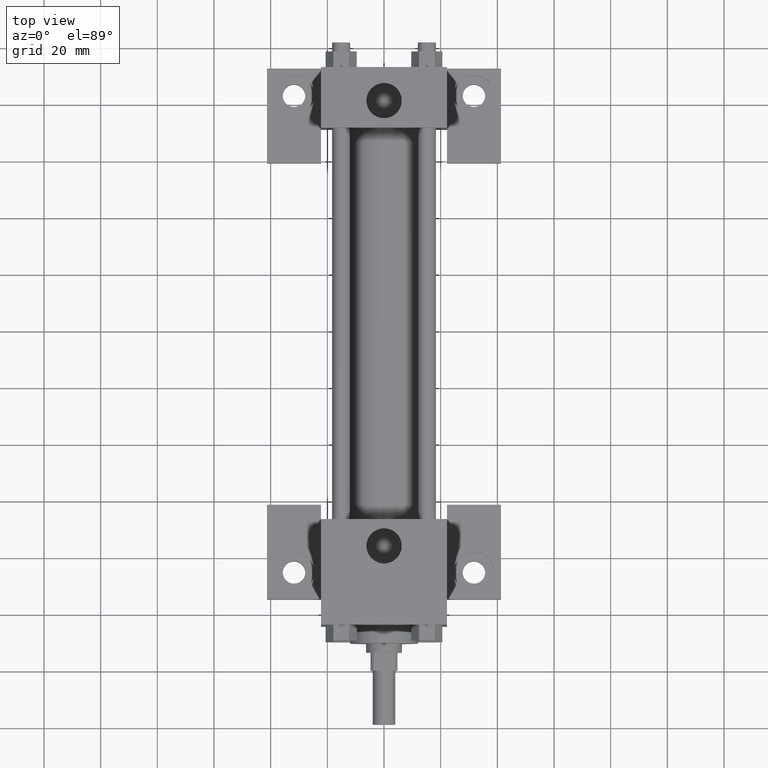
[diagram: clean part render]
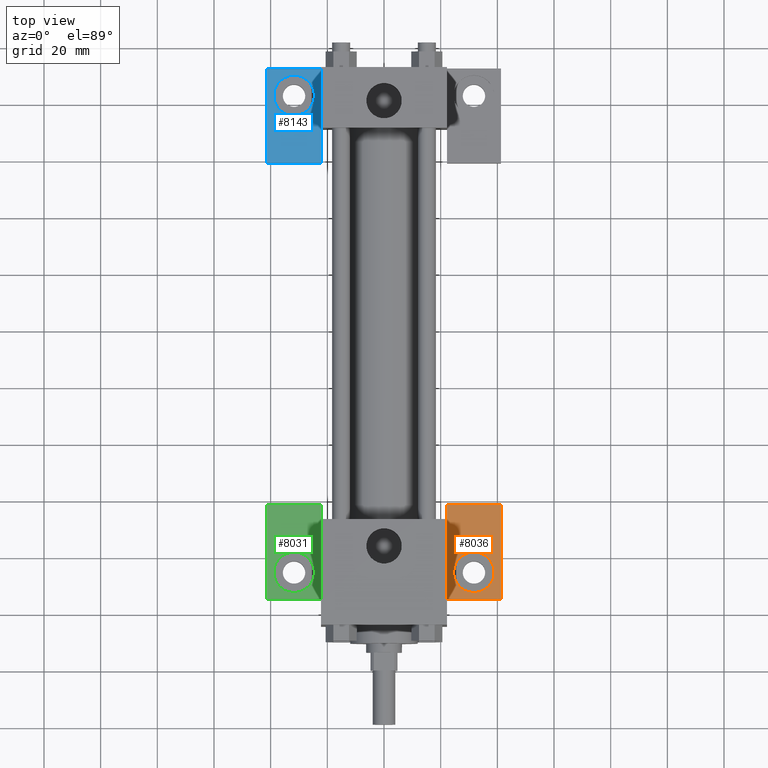
[diagram: same view with three faces highlighted in distinct colors, each labeled with its STEP entity id]
A machine part, top view with three faces highlighted in distinct colors.
Their STEP definitions:

[orange] entity #8036 — the highlighted planar face has unit normal (0, 0, 1).
#1417=EDGE_CURVE('',#1423,#1423,#1418,.T.);
#1418=CIRCLE('',#1419,7.143750000E+000);
#1419=AXIS2_PLACEMENT_3D('',#1420,#1421,#1422);
#1420=CARTESIAN_POINT('',(3.175000000E+001,3.492500000E+001,-9.525000000E+000));
#1421=DIRECTION('',(0.0E+000,0.0E+000,-1.0E+000));
#1422=DIRECTION('',(0.0E+000,-1.0E+000,0.0E+000));
#1423=VERTEX_POINT('',#1424);
#1424=CARTESIAN_POINT('',(3.175000000E+001,2.778125000E+001,-9.525000000E+000));
#1678=FACE_OUTER_BOUND('',#1680,.T.);
#1679=FACE_BOUND('',#1681,.T.);
#1680=EDGE_LOOP('',(#1682));
#1681=EDGE_LOOP('',(#1683,#1684,#1685,#1686,#1687));
#1682=ORIENTED_EDGE('',*,*,#1417,.T.);
#1683=ORIENTED_EDGE('',*,*,#1688,.T.);
#1684=ORIENTED_EDGE('',*,*,#1697,.T.);
#1685=ORIENTED_EDGE('',*,*,#1704,.T.);
#1686=ORIENTED_EDGE('',*,*,#1711,.T.);
#1687=ORIENTED_EDGE('',*,*,#1714,.T.);
#1688=EDGE_CURVE('',#1693,#1694,#1689,.T.);
#1689=LINE('',#1690,#1691);
#1690=CARTESIAN_POINT('',(4.127500000E+001,2.540000000E+001,-9.525000000E+000));
#1691=VECTOR('',#1692,1.0E+000);
#1692=DIRECTION('',(0.0E+000,1.0E+000,0.0E+000));
#1693=VERTEX_POINT('',#1695);
#1694=VERTEX_POINT('',#1696);
#1695=CARTESIAN_POINT('',(4.127500000E+001,2.540000000E+001,-9.525000000E+000));
#1696=CARTESIAN_POINT('',(4.127500000E+001,5.873750000E+001,-9.525000000E+000));
#1697=EDGE_CURVE('',#1694,#1702,#1698,.T.);
#1698=LINE('',#1699,#1700);
#1699=CARTESIAN_POINT('',(4.127500000E+001,5.873750000E+001,-9.525000000E+000));
#1700=VECTOR('',#1701,1.0E+000);
#1701=DIRECTION('',(-1.0E+000,0.0E+000,0.0E+000));
#1702=VERTEX_POINT('',#1703);
#1703=CARTESIAN_POINT('',(2.222500000E+001,5.873750000E+001,-9.525000000E+000));
#1704=EDGE_CURVE('',#1702,#1709,#1705,.T.);
#1705=LINE('',#1706,#1707);
#1706=CARTESIAN_POINT('',(2.222500000E+001,5.873750000E+001,-9.525000000E+000));
#1707=VECTOR('',#1708,1.0E+000);
#1708=DIRECTION('',(0.0E+000,-1.0E+000,0.0E+000));
#1709=VERTEX_POINT('',#1710);
#1710=CARTESIAN_POINT('',(2.222500000E+001,5.318125000E+001,-9.525000000E+000));
#1711=EDGE_CURVE('',#1709,#1712,#1705,.T.);
#1712=VERTEX_POINT('',#1713);
#1713=CARTESIAN_POINT('',(2.222500000E+001,2.540000000E+001,-9.525000000E+000));
#1714=EDGE_CURVE('',#1712,#1693,#1715,.T.);
#1715=LINE('',#1716,#1717);
#1716=CARTESIAN_POINT('',(2.222500000E+001,2.540000000E+001,-9.525000000E+000));
#1717=VECTOR('',#1718,1.0E+000);
#1718=DIRECTION('',(1.0E+000,0.0E+000,0.0E+000));
#1719=PLANE('',#1720);
#1720=AXIS2_PLACEMENT_3D('',#1721,#1722,#1723);
#1721=CARTESIAN_POINT('',(4.127500000E+001,5.873750000E+001,-9.525000000E+000));
#1722=DIRECTION('',(0.0E+000,0.0E+000,1.0E+000));
#1723=DIRECTION('',(1.0E+000,0.0E+000,0.0E+000));
#8036=ADVANCED_FACE('',(#1678,#1679),#1719,.T.);

[blue] entity #8143 — the highlighted planar face has unit normal (0, 0, -1).
#5169=EDGE_CURVE('',#5175,#5175,#5170,.T.);
#5170=CIRCLE('',#5171,7.143750000E+000);
#5171=AXIS2_PLACEMENT_3D('',#5172,#5173,#5174);
#5172=CARTESIAN_POINT('',(-3.175000000E+001,2.032000000E+002,-9.525000000E+000));
#5173=DIRECTION('',(0.0E+000,0.0E+000,-1.0E+000));
#5174=DIRECTION('',(0.0E+000,-1.0E+000,0.0E+000));
#5175=VERTEX_POINT('',#5176);
#5176=CARTESIAN_POINT('',(-3.175000000E+001,1.960562500E+002,-9.525000000E+000));
#5460=FACE_OUTER_BOUND('',#5462,.T.);
#5461=FACE_BOUND('',#5463,.T.);
#5462=EDGE_LOOP('',(#5464));
#5463=EDGE_LOOP('',(#5465,#5466,#5467,#5468,#5469));
#5464=ORIENTED_EDGE('',*,*,#5169,.T.);
#5465=ORIENTED_EDGE('',*,*,#5470,.F.);
#5466=ORIENTED_EDGE('',*,*,#5479,.F.);
#5467=ORIENTED_EDGE('',*,*,#5486,.F.);
#5468=ORIENTED_EDGE('',*,*,#5493,.F.);
#5469=ORIENTED_EDGE('',*,*,#5500,.F.);
#5470=EDGE_CURVE('',#5475,#5476,#5471,.T.);
#5471=LINE('',#5472,#5473);
#5472=CARTESIAN_POINT('',(-2.222500000E+001,2.127250000E+002,-9.525000000E+000));
#5473=VECTOR('',#5474,1.0E+000);
#5474=DIRECTION('',(0.0E+000,-1.0E+000,0.0E+000));
#5475=VERTEX_POINT('',#5477);
#5476=VERTEX_POINT('',#5478);
#5477=CARTESIAN_POINT('',(-2.222500000E+001,2.127250000E+002,-9.525000000E+000));
#5478=CARTESIAN_POINT('',(-2.222500000E+001,1.912937500E+002,-9.525000000E+000));
#5479=EDGE_CURVE('',#5484,#5475,#5480,.T.);
#5480=LINE('',#5481,#5482);
#5481=CARTESIAN_POINT('',(-4.127500000E+001,2.127250000E+002,-9.525000000E+000));
#5482=VECTOR('',#5483,1.0E+000);
#5483=DIRECTION('',(1.0E+000,0.0E+000,0.0E+000));
#5484=VERTEX_POINT('',#5485);
#5485=CARTESIAN_POINT('',(-4.127500000E+001,2.127250000E+002,-9.525000000E+000));
#5486=EDGE_CURVE('',#5491,#5484,#5487,.T.);
#5487=LINE('',#5488,#5489);
#5488=CARTESIAN_POINT('',(-4.127500000E+001,1.793875000E+002,-9.525000000E+000));
#5489=VECTOR('',#5490,1.0E+000);
#5490=DIRECTION('',(0.0E+000,1.0E+000,0.0E+000));
#5491=VERTEX_POINT('',#5492);
#5492=CARTESIAN_POINT('',(-4.127500000E+001,1.793875000E+002,-9.525000000E+000));
#5493=EDGE_CURVE('',#5498,#5491,#5494,.T.);
#5494=LINE('',#5495,#5496);
#5495=CARTESIAN_POINT('',(-2.222500000E+001,1.793875000E+002,-9.525000000E+000));
#5496=VECTOR('',#5497,1.0E+000);
#5497=DIRECTION('',(-1.0E+000,0.0E+000,0.0E+000));
#5498=VERTEX_POINT('',#5499);
#5499=CARTESIAN_POINT('',(-2.222500000E+001,1.793875000E+002,-9.525000000E+000));
#5500=EDGE_CURVE('',#5476,#5498,#5471,.T.);
#5501=PLANE('',#5502);
#5502=AXIS2_PLACEMENT_3D('',#5503,#5504,#5505);
#5503=CARTESIAN_POINT('',(-2.222500000E+001,1.793875000E+002,-9.525000000E+000));
#5504=DIRECTION('',(0.0E+000,0.0E+000,-1.0E+000));
#5505=DIRECTION('',(-1.0E+000,0.0E+000,0.0E+000));
#8143=ADVANCED_FACE('',(#5460,#5461),#5501,.F.);

[green] entity #8031 — the highlighted planar face has unit normal (0, 0, 1).
#1482=EDGE_CURVE('',#1488,#1488,#1483,.T.);
#1483=CIRCLE('',#1484,7.143750000E+000);
#1484=AXIS2_PLACEMENT_3D('',#1485,#1486,#1487);
#1485=CARTESIAN_POINT('',(-3.175000000E+001,3.492500000E+001,-9.525000000E+000));
#1486=DIRECTION('',(0.0E+000,0.0E+000,-1.0E+000));
#1487=DIRECTION('',(0.0E+000,-1.0E+000,0.0E+000));
#1488=VERTEX_POINT('',#1489);
#1489=CARTESIAN_POINT('',(-3.175000000E+001,2.778125000E+001,-9.525000000E+000));
#1533=FACE_OUTER_BOUND('',#1535,.T.);
#1534=FACE_BOUND('',#1536,.T.);
#1535=EDGE_LOOP('',(#1537));
#1536=EDGE_LOOP('',(#1538,#1539,#1540,#1541,#1542));
#1537=ORIENTED_EDGE('',*,*,#1482,.T.);
#1538=ORIENTED_EDGE('',*,*,#1543,.T.);
#1539=ORIENTED_EDGE('',*,*,#1552,.T.);
#1540=ORIENTED_EDGE('',*,*,#1555,.T.);
#1541=ORIENTED_EDGE('',*,*,#1562,.T.);
#1542=ORIENTED_EDGE('',*,*,#1569,.T.);
#1543=EDGE_CURVE('',#1548,#1549,#1544,.T.);
#1544=LINE('',#1545,#1546);
#1545=CARTESIAN_POINT('',(-2.222500000E+001,5.873750000E+001,-9.525000000E+000));
#1546=VECTOR('',#1547,1.0E+000);
#1547=DIRECTION('',(0.0E+000,1.0E+000,0.0E+000));
#1548=VERTEX_POINT('',#1550);
#1549=VERTEX_POINT('',#1551);
#1550=CARTESIAN_POINT('',(-2.222500000E+001,2.540000000E+001,-9.525000000E+000));
#1551=CARTESIAN_POINT('',(-2.222500000E+001,5.318125000E+001,-9.525000000E+000));
#1552=EDGE_CURVE('',#1549,#1553,#1544,.T.);
#1553=VERTEX_POINT('',#1554);
#1554=CARTESIAN_POINT('',(-2.222500000E+001,5.873750000E+001,-9.525000000E+000));
#1555=EDGE_CURVE('',#1553,#1560,#1556,.T.);
#1556=LINE('',#1557,#1558);
#1557=CARTESIAN_POINT('',(-2.222500000E+001,5.873750000E+001,-9.525000000E+000));
#1558=VECTOR('',#1559,1.0E+000);
#1559=DIRECTION('',(-1.0E+000,0.0E+000,0.0E+000));
#1560=VERTEX_POINT('',#1561);
#1561=CARTESIAN_POINT('',(-4.127500000E+001,5.873750000E+001,-9.525000000E+000));
#1562=EDGE_CURVE('',#1560,#1567,#1563,.T.);
#1563=LINE('',#1564,#1565);
#1564=CARTESIAN_POINT('',(-4.127500000E+001,5.873750000E+001,-9.525000000E+000));
#1565=VECTOR('',#1566,1.0E+000);
#1566=DIRECTION('',(0.0E+000,-1.0E+000,0.0E+000));
#1567=VERTEX_POINT('',#1568);
#1568=CARTESIAN_POINT('',(-4.127500000E+001,2.540000000E+001,-9.525000000E+000));
#1569=EDGE_CURVE('',#1567,#1548,#1570,.T.);
#1570=LINE('',#1571,#1572);
#1571=CARTESIAN_POINT('',(-4.127500000E+001,2.540000000E+001,-9.525000000E+000));
#1572=VECTOR('',#1573,1.0E+000);
#1573=DIRECTION('',(1.0E+000,0.0E+000,0.0E+000));
#1574=PLANE('',#1575);
#1575=AXIS2_PLACEMENT_3D('',#1576,#1577,#1578);
#1576=CARTESIAN_POINT('',(-2.222500000E+001,5.873750000E+001,-9.525000000E+000));
#1577=DIRECTION('',(0.0E+000,0.0E+000,1.0E+000));
#1578=DIRECTION('',(1.0E+000,0.0E+000,0.0E+000));
#8031=ADVANCED_FACE('',(#1533,#1534),#1574,.T.);